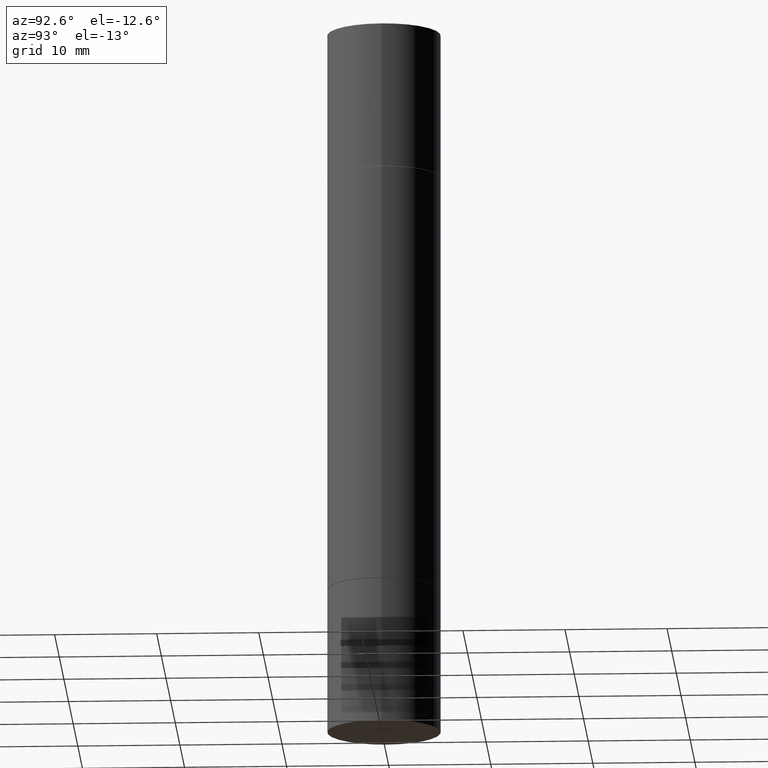
[diagram: clean part render]
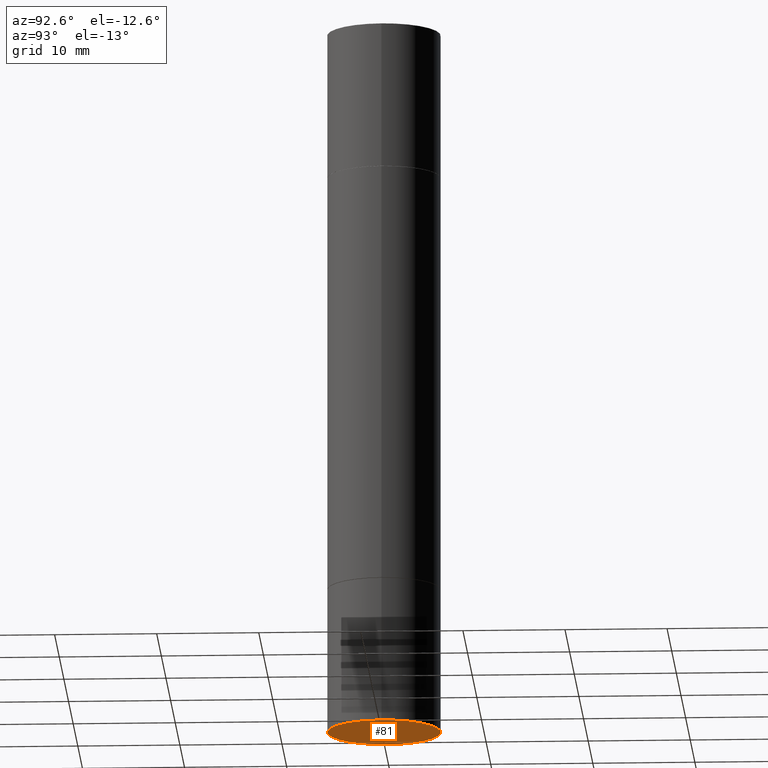
[diagram: same view with one face highlighted and labeled with its STEP entity id]
A machine part, auxiliary view. The second image highlights one B-rep face of the part: STEP entity #81.
In plain terms, the highlighted planar face has unit normal (0, -0, -1).
Its self-contained STEP definition (entity closure, byte-faithful):
#24 = DIRECTION ( 'NONE',  ( -1.000000000000000000, 6.982962677686265922E-15, -4.876176775795935793E-29 ) ) ;
#61 = DIRECTION ( 'NONE',  ( 1.000000000000000000, -6.982962677686262766E-15, 0.000000000000000000 ) ) ;
#73 = CARTESIAN_POINT ( 'NONE',  ( 6.725039217009124520E-29, -9.601573681818649859E-15, -2.750000000000000000 ) ) ;
#81 = ADVANCED_FACE ( 'NONE', ( #301 ), #186, .T. ) ;
#137 = EDGE_CURVE ( 'NONE', #346, #672, #362, .T. ) ;
#168 = AXIS2_PLACEMENT_3D ( 'NONE', #514, #623, #61 ) ;
#186 = PLANE ( 'NONE',  #645 ) ;
#229 = EDGE_LOOP ( 'NONE', ( #642, #680 ) ) ;
#253 = EDGE_CURVE ( 'NONE', #672, #346, #655, .T. ) ;
#254 = CARTESIAN_POINT ( 'NONE',  ( 0.2187500000000000000, -1.112909676756251991E-14, -2.750000000000000000 ) ) ;
#279 = DIRECTION ( 'NONE',  ( -2.445468806185136597E-29, 3.491481338843145583E-15, 1.000000000000000000 ) ) ;
#287 = DIRECTION ( 'NONE',  ( 2.438088387897960049E-29, -3.491481338843145188E-15, -1.000000000000000000 ) ) ;
#301 = FACE_OUTER_BOUND ( 'NONE', #229, .T. ) ;
#346 = VERTEX_POINT ( 'NONE', #417 ) ;
#362 = CIRCLE ( 'NONE', #574, 0.2187500000000000000 ) ;
#417 = CARTESIAN_POINT ( 'NONE',  ( -0.2187500000000000000, -7.066155191128507043E-15, -2.750000000000000000 ) ) ;
#483 = DIRECTION ( 'NONE',  ( 1.000000000000000000, -6.982962677686262766E-15, 0.000000000000000000 ) ) ;
#494 = CARTESIAN_POINT ( 'NONE',  ( 1.527523085743937699E-15, 0.2187499999999903966, -2.750000000000000444 ) ) ;
#514 = CARTESIAN_POINT ( 'NONE',  ( 6.725039217009124520E-29, -9.601573681818649859E-15, -2.750000000000000000 ) ) ;
#574 = AXIS2_PLACEMENT_3D ( 'NONE', #73, #279, #483 ) ;
#623 = DIRECTION ( 'NONE',  ( -2.445468806185136597E-29, 3.491481338843145583E-15, 1.000000000000000000 ) ) ;
#642 = ORIENTED_EDGE ( 'NONE', *, *, #253, .F. ) ;
#645 = AXIS2_PLACEMENT_3D ( 'NONE', #494, #287, #24 ) ;
#655 = CIRCLE ( 'NONE', #168, 0.2187500000000000000 ) ;
#672 = VERTEX_POINT ( 'NONE', #254 ) ;
#680 = ORIENTED_EDGE ( 'NONE', *, *, #137, .F. ) ;